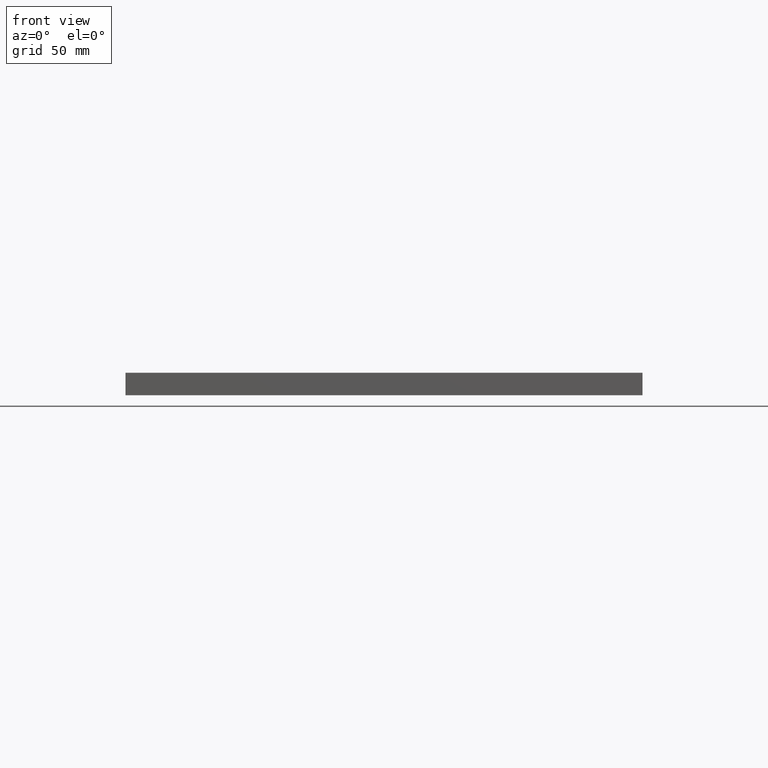
[diagram: clean part render]
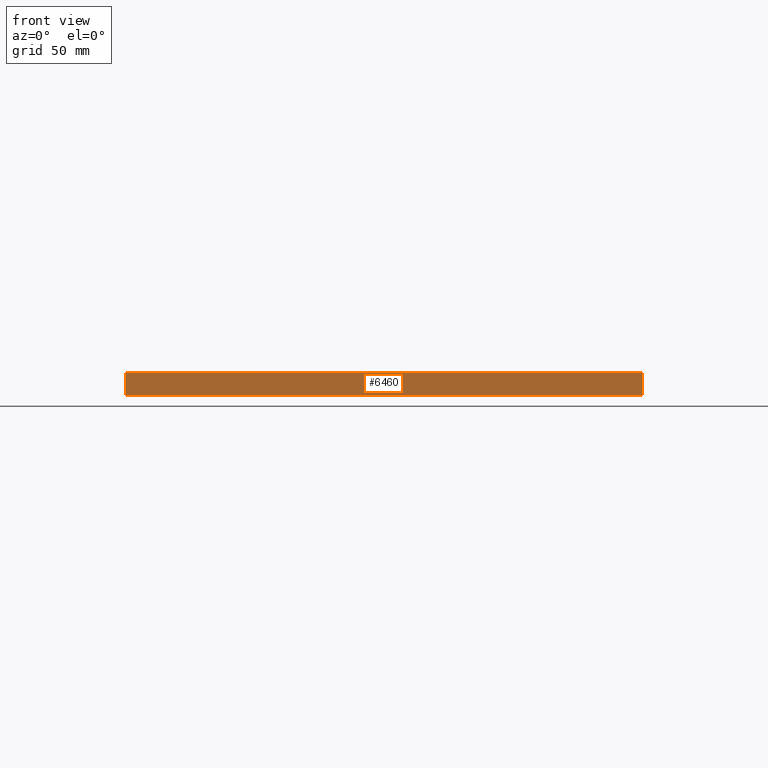
[diagram: same view with one face highlighted and labeled with its STEP entity id]
A machine part, front view. The second image highlights one B-rep face of the part: STEP entity #6460.
In plain terms, the highlighted planar face has unit normal (0, 1, 0).
Its self-contained STEP definition (entity closure, byte-faithful):
#175 = FACE_OUTER_BOUND ( 'NONE', #3372, .T. ) ;
#217 = DIRECTION ( 'NONE',  ( -0.0000000000000000000, -0.0000000000000000000, -1.000000000000000000 ) ) ;
#572 = EDGE_CURVE ( 'NONE', #1126, #6824, #1113, .T. ) ;
#640 = DIRECTION ( 'NONE',  ( -0.0000000000000000000, -0.0000000000000000000, -1.000000000000000000 ) ) ;
#1113 = LINE ( 'NONE', #2284, #5427 ) ;
#1126 = VERTEX_POINT ( 'NONE', #7388 ) ;
#1525 = CARTESIAN_POINT ( 'NONE',  ( 150.0000000000000300, -150.0000000000000300, 0.0000000000000000000 ) ) ;
#1634 = VECTOR ( 'NONE', #217, 1000.000000000000000 ) ;
#1931 = CARTESIAN_POINT ( 'NONE',  ( -149.9999999999999700, -150.0000000000000300, 13.00000000000000000 ) ) ;
#1990 = VECTOR ( 'NONE', #640, 1000.000000000000000 ) ;
#2284 = CARTESIAN_POINT ( 'NONE',  ( -149.9999999999999700, -150.0000000000000300, 0.0000000000000000000 ) ) ;
#2308 = ORIENTED_EDGE ( 'NONE', *, *, #5532, .F. ) ;
#2976 = AXIS2_PLACEMENT_3D ( 'NONE', #1931, #3112, #7184 ) ;
#2993 = CARTESIAN_POINT ( 'NONE',  ( 150.0000000000000300, -150.0000000000000300, 13.00000000000000000 ) ) ;
#3036 = CARTESIAN_POINT ( 'NONE',  ( -149.9999999999999700, -150.0000000000000300, 13.00000000000000000 ) ) ;
#3112 = DIRECTION ( 'NONE',  ( 0.0000000000000000000, 1.000000000000000000, 0.0000000000000000000 ) ) ;
#3372 = EDGE_LOOP ( 'NONE', ( #6812, #6299, #2308, #7511 ) ) ;
#3407 = VERTEX_POINT ( 'NONE', #4709 ) ;
#4101 = VECTOR ( 'NONE', #5997, 1000.000000000000000 ) ;
#4709 = CARTESIAN_POINT ( 'NONE',  ( 150.0000000000000300, -150.0000000000000300, 13.00000000000000000 ) ) ;
#4757 = LINE ( 'NONE', #7198, #1634 ) ;
#4855 = PLANE ( 'NONE',  #2976 ) ;
#5303 = LINE ( 'NONE', #2993, #1990 ) ;
#5427 = VECTOR ( 'NONE', #6383, 1000.000000000000000 ) ;
#5532 = EDGE_CURVE ( 'NONE', #5879, #3407, #7192, .T. ) ;
#5879 = VERTEX_POINT ( 'NONE', #6899 ) ;
#5997 = DIRECTION ( 'NONE',  ( 1.000000000000000000, 0.0000000000000000000, 0.0000000000000000000 ) ) ;
#6299 = ORIENTED_EDGE ( 'NONE', *, *, #6327, .F. ) ;
#6327 = EDGE_CURVE ( 'NONE', #3407, #6824, #5303, .T. ) ;
#6383 = DIRECTION ( 'NONE',  ( 1.000000000000000000, 0.0000000000000000000, 0.0000000000000000000 ) ) ;
#6460 = ADVANCED_FACE ( 'NONE', ( #175 ), #4855, .F. ) ;
#6637 = EDGE_CURVE ( 'NONE', #5879, #1126, #4757, .T. ) ;
#6812 = ORIENTED_EDGE ( 'NONE', *, *, #572, .T. ) ;
#6824 = VERTEX_POINT ( 'NONE', #1525 ) ;
#6899 = CARTESIAN_POINT ( 'NONE',  ( -149.9999999999999700, -150.0000000000000300, 13.00000000000000000 ) ) ;
#7184 = DIRECTION ( 'NONE',  ( 0.0000000000000000000, -0.0000000000000000000, 1.000000000000000000 ) ) ;
#7192 = LINE ( 'NONE', #3036, #4101 ) ;
#7198 = CARTESIAN_POINT ( 'NONE',  ( -149.9999999999999700, -150.0000000000000300, 13.00000000000000000 ) ) ;
#7388 = CARTESIAN_POINT ( 'NONE',  ( -149.9999999999999700, -150.0000000000000300, 0.0000000000000000000 ) ) ;
#7511 = ORIENTED_EDGE ( 'NONE', *, *, #6637, .T. ) ;